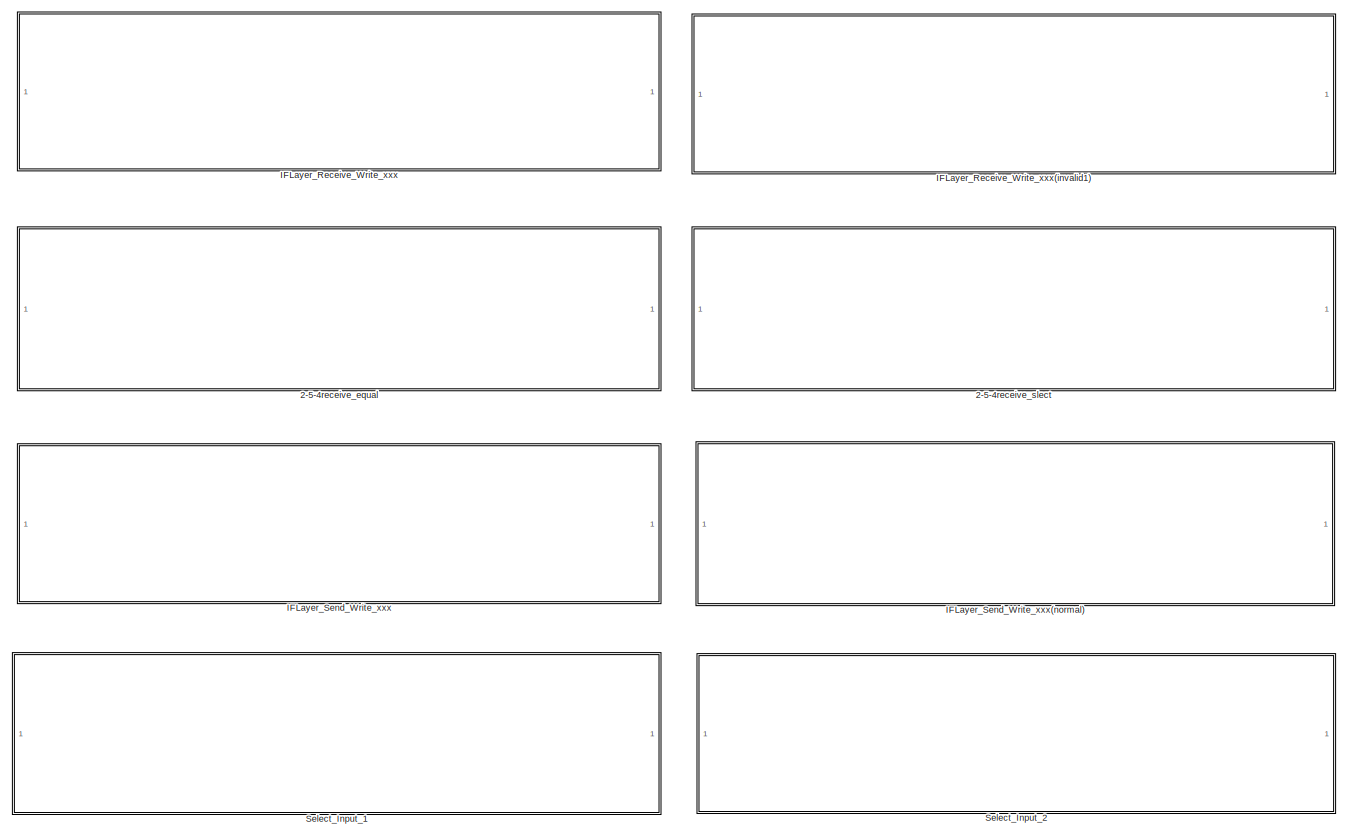
[diagram: root canvas - part 1/3, center side, full height]
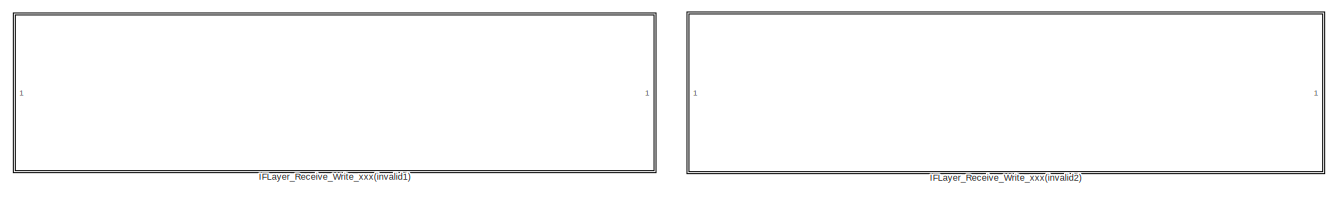
[diagram: root canvas - part 2/3, top center region]
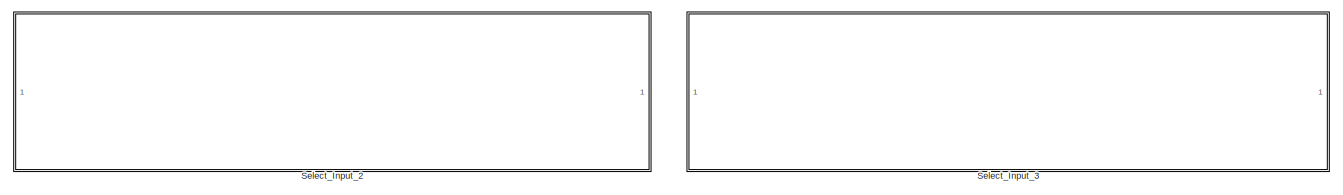
[diagram: root canvas - part 3/3, bottom right region]
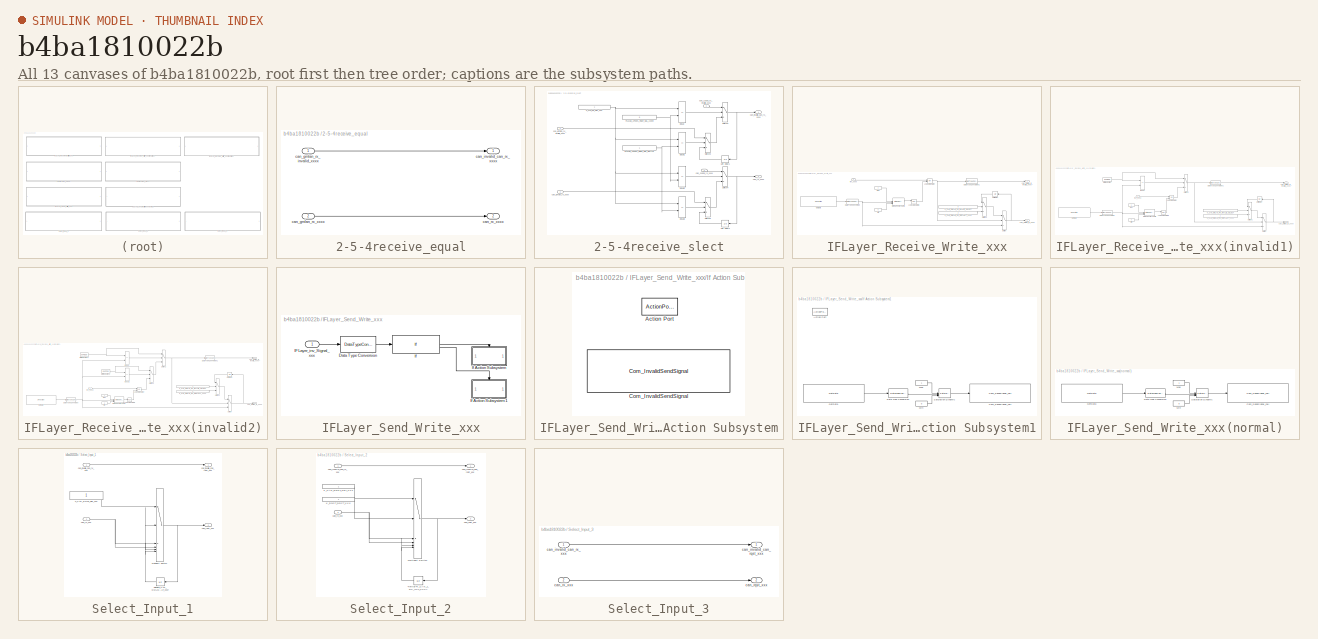
[diagram: thumbnail index - all 13 canvases of the model, root first then tree order]
MODEL slx_b4ba1810022b
KIND model
CONFIG AbsTol = auto
CONFIG EnableMultiTasking = off
CONFIG FixedStep = auto
CONFIG MaxStep = auto
CONFIG MinStep = auto
CONFIG RelTol = 1e-3
CONFIG SampleTimeConstraint = Unconstrained
CONFIG SolverName = VariableStepAuto
CONFIG StartTime = 0.0
CONFIG StopTime = 10.0
BLOCK [SubSystem] 2-5-4receive_equal
  RTWSystemCode = Nonreusable function
  TreatAsAtomicUnit = on
BLOCK [Inport] 2-5-4receive_equal/can_gmlan_rx_invalid_xxxx
BLOCK [Inport] 2-5-4receive_equal/can_gmlan_rx_xxxx
  Port = 2
BLOCK [Outport] 2-5-4receive_equal/can_invalid_can_rx_xxxx
BLOCK [Outport] 2-5-4receive_equal/can_rx_xxxx
  Port = 2
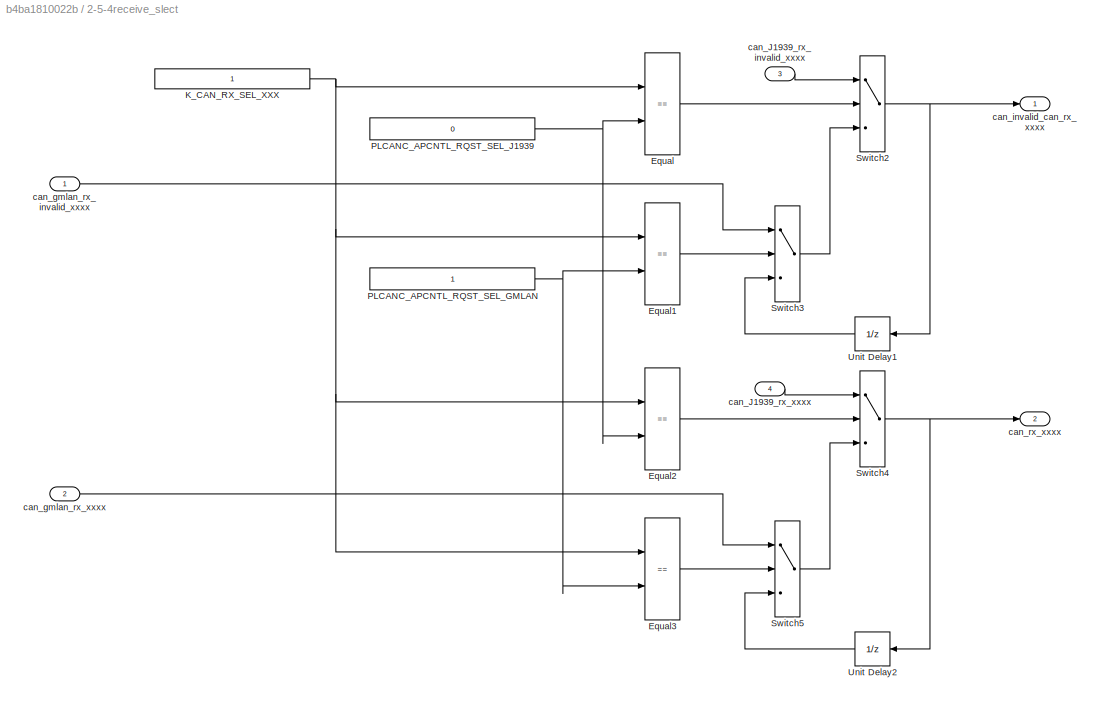
BLOCK [SubSystem] 2-5-4receive_slect
  RTWSystemCode = Nonreusable function
  TreatAsAtomicUnit = on
BLOCK [RelationalOperator] 2-5-4receive_slect/Equal
  InputSameDT = off
  Operator = ==
  OutDataTypeStr = boolean
  RndMeth = Simplest
BLOCK [RelationalOperator] 2-5-4receive_slect/Equal1
  InputSameDT = off
  Operator = ==
  OutDataTypeStr = boolean
  RndMeth = Simplest
BLOCK [RelationalOperator] 2-5-4receive_slect/Equal2
  InputSameDT = off
  Operator = ==
  OutDataTypeStr = boolean
  RndMeth = Simplest
BLOCK [RelationalOperator] 2-5-4receive_slect/Equal3
  InputSameDT = off
  Operator = ==
  OutDataTypeStr = boolean
  RndMeth = Simplest
BLOCK [Constant] 2-5-4receive_slect/K_CAN_RX_SEL_XXX
BLOCK [Constant] 2-5-4receive_slect/PLCANC_APCNTL_RQST_SEL_GMLAN
BLOCK [Constant] 2-5-4receive_slect/PLCANC_APCNTL_RQST_SEL_J1939
  Value = 0
BLOCK [Switch] 2-5-4receive_slect/Switch2
  Criteria = u2 > Threshold
  InputSameDT = off
  SaturateOnIntegerOverflow = off
BLOCK [Switch] 2-5-4receive_slect/Switch3
  Criteria = u2 > Threshold
  InputSameDT = off
  SaturateOnIntegerOverflow = off
BLOCK [Switch] 2-5-4receive_slect/Switch4
  Criteria = u2 > Threshold
  InputSameDT = off
  SaturateOnIntegerOverflow = off
BLOCK [Switch] 2-5-4receive_slect/Switch5
  Criteria = u2 > Threshold
  InputSameDT = off
  SaturateOnIntegerOverflow = off
BLOCK [UnitDelay] 2-5-4receive_slect/Unit Delay1
  HasFrameUpgradeWarning = on
  SampleTime = -1
BLOCK [UnitDelay] 2-5-4receive_slect/Unit Delay2
  HasFrameUpgradeWarning = on
  SampleTime = -1
BLOCK [Inport] 2-5-4receive_slect/can_J1939_rx_invalid_xxxx
  Port = 3
BLOCK [Inport] 2-5-4receive_slect/can_J1939_rx_xxxx
  Port = 4
BLOCK [Inport] 2-5-4receive_slect/can_gmlan_rx_invalid_xxxx
BLOCK [Inport] 2-5-4receive_slect/can_gmlan_rx_xxxx
  Port = 2
BLOCK [Outport] 2-5-4receive_slect/can_invalid_can_rx_xxxx
BLOCK [Outport] 2-5-4receive_slect/can_rx_xxxx
  Port = 2
BLOCK [SubSystem] IFLayer_Receive_Write_xxx
  RTWSystemCode = Nonreusable function
  TreatAsAtomicUnit = on
BLOCK [SubSystem] IFLayer_Receive_Write_xxx(invalid1)
  RTWSystemCode = Nonreusable function
  TreatAsAtomicUnit = on
BLOCK [DataTypeConversion] IFLayer_Receive_Write_xxx(invalid1)/Data Type Conversion
  ConvertRealWorld = Stored Integer (SI)
  RndMeth = Floor
  SaturateOnIntegerOverflow = off
BLOCK [DataTypeConversion] IFLayer_Receive_Write_xxx(invalid1)/Data Type Conversion1
  ConvertRealWorld = Stored Integer (SI)
  RndMeth = Floor
  SaturateOnIntegerOverflow = off
BLOCK [RelationalOperator] IFLayer_Receive_Write_xxx(invalid1)/Equal
  InputSameDT = off
  Operator = ==
  OutDataTypeStr = boolean
  RndMeth = Simplest
BLOCK [Constant] IFLayer_Receive_Write_xxx(invalid1)/ErrorIndication
  OutDataTypeStr = Inherit: Inherit via back propagation
  Value = 0xFE00
BLOCK [S-Function] IFLayer_Receive_Write_xxx(invalid1)/GetData
  EnableBusSupport = off
  FunctionName = GetData
  Parameters = interface,signalType
  SFcnIsStateOwnerBlock = off
  SFunctionDeploymentMode = off
BLOCK [Reference] IFLayer_Receive_Write_xxx(invalid1)/Interval Test Dynamic  REF=simulink/Logic and Bit
Operations/Interval Test
Dynamic
  SourceBlock = simulink/Logic and Bit\nOperations/Interval Test\nDynamic
  SourceType = Interval Test Dynamic
BLOCK [Constant] IFLayer_Receive_Write_xxx(invalid1)/K_CAN_GMLAN_RX_DEFAULT_xxxx
  OutDataTypeStr = Inherit: Inherit via back propagation
BLOCK [Constant] IFLayer_Receive_Write_xxx(invalid1)/K_CAN_GMLAN_RX_INVALID_SELECT
  OutDataTypeStr = Inherit: Inherit via back propagation
BLOCK [Logic] IFLayer_Receive_Write_xxx(invalid1)/Logical Operator
  AllPortsSameDT = off
  Operator = OR
  OutDataTypeStr = boolean
BLOCK [Logic] IFLayer_Receive_Write_xxx(invalid1)/Logical Operator1
  AllPortsSameDT = off
  Operator = NOT
  OutDataTypeStr = boolean
BLOCK [Constant] IFLayer_Receive_Write_xxx(invalid1)/Max
  OutDataTypeStr = Inherit: Inherit via back propagation
BLOCK [Constant] IFLayer_Receive_Write_xxx(invalid1)/Min
  OutDataTypeStr = Inherit: Inherit via back propagation
  Value = 0
BLOCK [Switch] IFLayer_Receive_Write_xxx(invalid1)/Switch
  Criteria = u2 > Threshold
  InputSameDT = off
  SaturateOnIntegerOverflow = off
BLOCK [Switch] IFLayer_Receive_Write_xxx(invalid1)/Switch1
  Criteria = u2 > Threshold
  InputSameDT = off
  SaturateOnIntegerOverflow = off
BLOCK [Switch] IFLayer_Receive_Write_xxx(invalid1)/Switch2
  Criteria = u2 > Threshold
  InputSameDT = off
  SaturateOnIntegerOverflow = off
BLOCK [UnitDelay] IFLayer_Receive_Write_xxx(invalid1)/Unit Delay
  HasFrameUpgradeWarning = on
  NameLocation = top
  SampleTime = -1
BLOCK [Outport] IFLayer_Receive_Write_xxx(invalid1)/can_gmlan_rx_invalid_xxxx
BLOCK [Outport] IFLayer_Receive_Write_xxx(invalid1)/can_gmlan_rx_xxxx
  Port = 2
BLOCK [Inport] IFLayer_Receive_Write_xxx(invalid1)/inv_xxxx
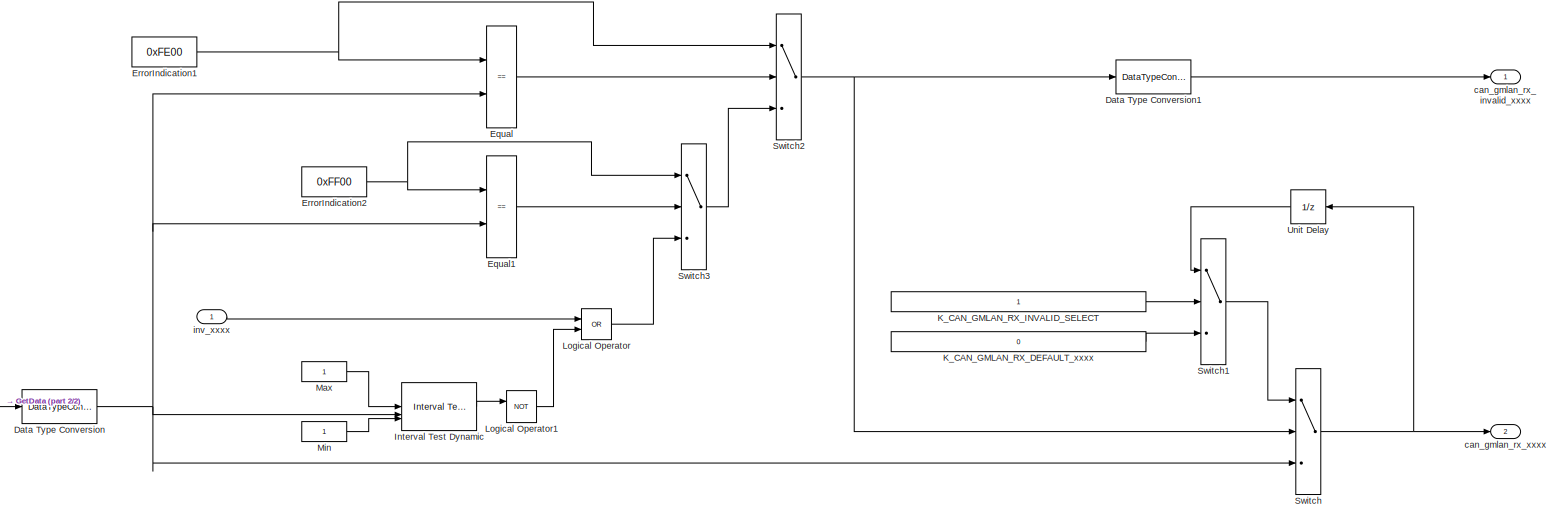
[diagram: IFLayer_Receive_Write_xxx(invalid2) - part 1/2, most of the canvas]
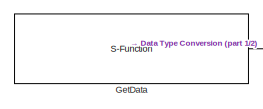
[diagram: IFLayer_Receive_Write_xxx(invalid2) - part 2/2, bottom left region]
BLOCK [SubSystem] IFLayer_Receive_Write_xxx(invalid2)
  RTWSystemCode = Nonreusable function
  TreatAsAtomicUnit = on
BLOCK [DataTypeConversion] IFLayer_Receive_Write_xxx(invalid2)/Data Type Conversion
  ConvertRealWorld = Stored Integer (SI)
  RndMeth = Floor
  SaturateOnIntegerOverflow = off
BLOCK [DataTypeConversion] IFLayer_Receive_Write_xxx(invalid2)/Data Type Conversion1
  ConvertRealWorld = Stored Integer (SI)
  RndMeth = Floor
  SaturateOnIntegerOverflow = off
BLOCK [RelationalOperator] IFLayer_Receive_Write_xxx(invalid2)/Equal
  InputSameDT = off
  Operator = ==
  OutDataTypeStr = boolean
  RndMeth = Simplest
BLOCK [RelationalOperator] IFLayer_Receive_Write_xxx(invalid2)/Equal1
  InputSameDT = off
  Operator = ==
  OutDataTypeStr = boolean
  RndMeth = Simplest
BLOCK [Constant] IFLayer_Receive_Write_xxx(invalid2)/ErrorIndication1
  OutDataTypeStr = Inherit: Inherit via back propagation
  Value = 0xFE00
BLOCK [Constant] IFLayer_Receive_Write_xxx(invalid2)/ErrorIndication2
  OutDataTypeStr = Inherit: Inherit via back propagation
  Value = 0xFF00
BLOCK [S-Function] IFLayer_Receive_Write_xxx(invalid2)/GetData
  EnableBusSupport = off
  FunctionName = GetData
  Parameters = interface,signalType
  SFcnIsStateOwnerBlock = off
  SFunctionDeploymentMode = off
BLOCK [Reference] IFLayer_Receive_Write_xxx(invalid2)/Interval Test Dynamic  REF=simulink/Logic and Bit
Operations/Interval Test
Dynamic
  SourceBlock = simulink/Logic and Bit\nOperations/Interval Test\nDynamic
  SourceType = Interval Test Dynamic
BLOCK [Constant] IFLayer_Receive_Write_xxx(invalid2)/K_CAN_GMLAN_RX_DEFAULT_xxxx
  OutDataTypeStr = Inherit: Inherit via back propagation
  Value = 0
BLOCK [Constant] IFLayer_Receive_Write_xxx(invalid2)/K_CAN_GMLAN_RX_INVALID_SELECT
  OutDataTypeStr = Inherit: Inherit via back propagation
BLOCK [Logic] IFLayer_Receive_Write_xxx(invalid2)/Logical Operator
  AllPortsSameDT = off
  Operator = OR
  OutDataTypeStr = boolean
BLOCK [Logic] IFLayer_Receive_Write_xxx(invalid2)/Logical Operator1
  AllPortsSameDT = off
  Operator = NOT
  OutDataTypeStr = boolean
BLOCK [Constant] IFLayer_Receive_Write_xxx(invalid2)/Max
  OutDataTypeStr = Inherit: Inherit via back propagation
BLOCK [Constant] IFLayer_Receive_Write_xxx(invalid2)/Min
  OutDataTypeStr = Inherit: Inherit via back propagation
BLOCK [Switch] IFLayer_Receive_Write_xxx(invalid2)/Switch
  Criteria = u2 > Threshold
  InputSameDT = off
  SaturateOnIntegerOverflow = off
BLOCK [Switch] IFLayer_Receive_Write_xxx(invalid2)/Switch1
  Criteria = u2 > Threshold
  InputSameDT = off
  SaturateOnIntegerOverflow = off
BLOCK [Switch] IFLayer_Receive_Write_xxx(invalid2)/Switch2
  Criteria = u2 > Threshold
  InputSameDT = off
  SaturateOnIntegerOverflow = off
BLOCK [Switch] IFLayer_Receive_Write_xxx(invalid2)/Switch3
  Criteria = u2 > Threshold
  InputSameDT = off
  SaturateOnIntegerOverflow = off
BLOCK [UnitDelay] IFLayer_Receive_Write_xxx(invalid2)/Unit Delay
  HasFrameUpgradeWarning = on
  NameLocation = top
  SampleTime = -1
BLOCK [Outport] IFLayer_Receive_Write_xxx(invalid2)/can_gmlan_rx_invalid_xxxx
BLOCK [Outport] IFLayer_Receive_Write_xxx(invalid2)/can_gmlan_rx_xxxx
  Port = 2
BLOCK [Inport] IFLayer_Receive_Write_xxx(invalid2)/inv_xxxx
BLOCK [DataTypeConversion] IFLayer_Receive_Write_xxx/Data Type Conversion
  ConvertRealWorld = Stored Integer (SI)
  RndMeth = Floor
  SaturateOnIntegerOverflow = off
BLOCK [DataTypeConversion] IFLayer_Receive_Write_xxx/Data Type Conversion1
  ConvertRealWorld = Stored Integer (SI)
  RndMeth = Floor
  SaturateOnIntegerOverflow = off
BLOCK [S-Function] IFLayer_Receive_Write_xxx/GetData
  EnableBusSupport = off
  FunctionName = GetData
  Parameters = interface,signalType
  SFcnIsStateOwnerBlock = off
  SFunctionDeploymentMode = off
BLOCK [Reference] IFLayer_Receive_Write_xxx/Interval Test Dynamic  REF=simulink/Logic and Bit
Operations/Interval Test
Dynamic
  SourceBlock = simulink/Logic and Bit\nOperations/Interval Test\nDynamic
  SourceType = Interval Test Dynamic
BLOCK [Constant] IFLayer_Receive_Write_xxx/K_CAN_GMLAN_RX_DEFAULT_xxxx
  OutDataTypeStr = Inherit: Inherit via back propagation
BLOCK [Constant] IFLayer_Receive_Write_xxx/K_CAN_GMLAN_RX_INVALID_SELECT
  OutDataTypeStr = Inherit: Inherit via back propagation
  Value = 0
BLOCK [Logic] IFLayer_Receive_Write_xxx/Logical Operator
  AllPortsSameDT = off
  Operator = OR
  OutDataTypeStr = boolean
BLOCK [Logic] IFLayer_Receive_Write_xxx/Logical Operator1
  AllPortsSameDT = off
  Operator = NOT
  OutDataTypeStr = boolean
BLOCK [Constant] IFLayer_Receive_Write_xxx/Max
  OutDataTypeStr = Inherit: Inherit via back propagation
BLOCK [Constant] IFLayer_Receive_Write_xxx/Min
  OutDataTypeStr = Inherit: Inherit via back propagation
  Value = 0
BLOCK [Switch] IFLayer_Receive_Write_xxx/Switch
  Criteria = u2 > Threshold
  InputSameDT = off
  SaturateOnIntegerOverflow = off
BLOCK [Switch] IFLayer_Receive_Write_xxx/Switch1
  Criteria = u2 > Threshold
  InputSameDT = off
  SaturateOnIntegerOverflow = off
BLOCK [UnitDelay] IFLayer_Receive_Write_xxx/Unit Delay
  HasFrameUpgradeWarning = on
  NameLocation = top
  SampleTime = -1
BLOCK [Outport] IFLayer_Receive_Write_xxx/can_gmlan_rx_invalid_xxxx
BLOCK [Outport] IFLayer_Receive_Write_xxx/can_gmlan_rx_xxxx
  Port = 2
BLOCK [Inport] IFLayer_Receive_Write_xxx/inv_xxxx
BLOCK [SubSystem] IFLayer_Send_Write_xxx
  RTWSystemCode = Nonreusable function
  TreatAsAtomicUnit = on
BLOCK [SubSystem] IFLayer_Send_Write_xxx(normal)
  RTWSystemCode = Nonreusable function
  TreatAsAtomicUnit = on
BLOCK [Reference] IFLayer_Send_Write_xxx(normal)/Com_SendSignal_call  REF=user_lib/Com_SendSignal_call
  SourceBlock = user_lib/Com_SendSignal_call
  SourceProductName = User Defined for IFLayer
BLOCK [DataTypeConversion] IFLayer_Send_Write_xxx(normal)/Data Type Conversion
  ConvertRealWorld = Stored Integer (SI)
  RndMeth = Floor
  SaturateOnIntegerOverflow = off
BLOCK [Reference] IFLayer_Send_Write_xxx(normal)/GetData  REF=user_lib/GetData
  SourceBlock = user_lib/GetData
  SourceProductName = User Defined for IFLayer
BLOCK [Constant] IFLayer_Send_Write_xxx(normal)/Max
  OutDataTypeStr = Inherit: Inherit via back propagation
BLOCK [Constant] IFLayer_Send_Write_xxx(normal)/Min
  OutDataTypeStr = Inherit: Inherit via back propagation
  Value = 0
BLOCK [Reference] IFLayer_Send_Write_xxx(normal)/Saturation Dynamic  REF=simulink/Discontinuities/Saturation
Dynamic
  SourceBlock = simulink/Discontinuities/Saturation\nDynamic
  SourceType = Saturation Dynamic
BLOCK [DataTypeConversion] IFLayer_Send_Write_xxx/Data Type Conversion
  OutDataTypeStr = uint8
  RndMeth = Floor
  SaturateOnIntegerOverflow = off
BLOCK [Inport] IFLayer_Send_Write_xxx/IFLayer_inv_Signal_xxx
BLOCK [If] IFLayer_Send_Write_xxx/If
  IfExpression = u1 == 1
BLOCK [SubSystem] IFLayer_Send_Write_xxx/If Action Subsystem
  TreatAsAtomicUnit = on
BLOCK [ActionPort] IFLayer_Send_Write_xxx/If Action Subsystem/Action Port
BLOCK [Reference] IFLayer_Send_Write_xxx/If Action Subsystem/Com_InvalidSendSignal  REF=user_lib/Com_InvalidSendSignal
  SourceBlock = user_lib/Com_InvalidSendSignal
  SourceProductName = User Defined for IFLayer
BLOCK [SubSystem] IFLayer_Send_Write_xxx/If Action Subsystem1
  TreatAsAtomicUnit = on
BLOCK [ActionPort] IFLayer_Send_Write_xxx/If Action Subsystem1/Action Port
BLOCK [Reference] IFLayer_Send_Write_xxx/If Action Subsystem1/Com_SendSignal_call  REF=user_lib/Com_SendSignal_call
  SourceBlock = user_lib/Com_SendSignal_call
  SourceProductName = User Defined for IFLayer
BLOCK [DataTypeConversion] IFLayer_Send_Write_xxx/If Action Subsystem1/Data Type Conversion
  ConvertRealWorld = Stored Integer (SI)
  RndMeth = Floor
  SaturateOnIntegerOverflow = off
BLOCK [Reference] IFLayer_Send_Write_xxx/If Action Subsystem1/GetData  REF=user_lib/GetData
  SourceBlock = user_lib/GetData
  SourceProductName = User Defined for IFLayer
BLOCK [Constant] IFLayer_Send_Write_xxx/If Action Subsystem1/Max
  OutDataTypeStr = Inherit: Inherit via back propagation
BLOCK [Constant] IFLayer_Send_Write_xxx/If Action Subsystem1/Min
  OutDataTypeStr = Inherit: Inherit via back propagation
  Value = 0
BLOCK [Reference] IFLayer_Send_Write_xxx/If Action Subsystem1/Saturation Dynamic  REF=simulink/Discontinuities/Saturation
Dynamic
  SourceBlock = simulink/Discontinuities/Saturation\nDynamic
  SourceType = Saturation Dynamic
BLOCK [SubSystem] Select_Input_1
  RTWSystemCode = Nonreusable function
  TreatAsAtomicUnit = on
BLOCK [UnitDelay] Select_Input_1/<initial=K_CAN_GMLAN_RX_DEFAULT_XXX>
  HasFrameUpgradeWarning = on
  SampleTime = -1
BLOCK [Constant] Select_Input_1/K_CAN_RQST_SEL_XXX
BLOCK [MultiPortSwitch] Select_Input_1/Multiport Switch
  DataPortOrder = Zero-based contiguous
  InputSameDT = off
  Inputs = 5
  SaturateOnIntegerOverflow = off
  zeroidx = on
BLOCK [Outport] Select_Input_1/can_invalid_can_rqst_xxx
BLOCK [Inport] Select_Input_1/can_invalid_can_rx_xxx
BLOCK [Outport] Select_Input_1/can_rqst_xxx
  Port = 2
BLOCK [Inport] Select_Input_1/can_rx_xxx
  Port = 2
BLOCK [SubSystem] Select_Input_2
  RTWSystemCode = Nonreusable function
  TreatAsAtomicUnit = on
BLOCK [UnitDelay] Select_Input_2/<initial=K_CAN_J_RX_INIT_XXX>
  HasFrameUpgradeWarning = on
  SampleTime = -1
BLOCK [Constant] Select_Input_2/K_CAN_RQST_SEL_XXX
BLOCK [Constant] Select_Input_2/K_RQST_DRCT_XXX
BLOCK [MultiPortSwitch] Select_Input_2/Multiport Switch
  DataPortOrder = Zero-based contiguous
  InputSameDT = off
  Inputs = 5
  SaturateOnIntegerOverflow = off
  zeroidx = on
BLOCK [Outport] Select_Input_2/can_invalid_can_rqst_xxx
BLOCK [Inport] Select_Input_2/can_invalid_can_rx_xxx
BLOCK [Outport] Select_Input_2/can_rqst_xxx
  Port = 2
BLOCK [Inport] Select_Input_2/can_rx_xxx
  Port = 2
BLOCK [SubSystem] Select_Input_3
  RTWSystemCode = Nonreusable function
  TreatAsAtomicUnit = on
BLOCK [Outport] Select_Input_3/can_invalid_can_rqst_xxx
BLOCK [Inport] Select_Input_3/can_invalid_can_rx_xxx
BLOCK [Outport] Select_Input_3/can_rqst_xxx
  Port = 2
BLOCK [Inport] Select_Input_3/can_rx_xxx
  Port = 2
LINE 2-5-4receive_equal/can_gmlan_rx_invalid_xxxx:1 -> 2-5-4receive_equal/can_invalid_can_rx_xxxx:1
LINE 2-5-4receive_equal/can_gmlan_rx_xxxx:1 -> 2-5-4receive_equal/can_rx_xxxx:1
LINE 2-5-4receive_slect/Equal1:1 -> 2-5-4receive_slect/Switch3:2
LINE 2-5-4receive_slect/Equal2:1 -> 2-5-4receive_slect/Switch4:2
LINE 2-5-4receive_slect/Equal3:1 -> 2-5-4receive_slect/Switch5:2
LINE 2-5-4receive_slect/Equal:1 -> 2-5-4receive_slect/Switch2:2
NET 2-5-4receive_slect/K_CAN_RX_SEL_XXX:1 -> 2-5-4receive_slect/Equal1:1, 2-5-4receive_slect/Equal2:1, 2-5-4receive_slect/Equal3:1, 2-5-4receive_slect/Equal:1
NET 2-5-4receive_slect/PLCANC_APCNTL_RQST_SEL_GMLAN:1 -> 2-5-4receive_slect/Equal1:2, 2-5-4receive_slect/Equal3:2
NET 2-5-4receive_slect/PLCANC_APCNTL_RQST_SEL_J1939:1 -> 2-5-4receive_slect/Equal2:2, 2-5-4receive_slect/Equal:2
NET 2-5-4receive_slect/Switch2:1 -> 2-5-4receive_slect/Unit Delay1:1, 2-5-4receive_slect/can_invalid_can_rx_xxxx:1
LINE 2-5-4receive_slect/Switch3:1 -> 2-5-4receive_slect/Switch2:3
NET 2-5-4receive_slect/Switch4:1 -> 2-5-4receive_slect/Unit Delay2:1, 2-5-4receive_slect/can_rx_xxxx:1
LINE 2-5-4receive_slect/Switch5:1 -> 2-5-4receive_slect/Switch4:3
LINE 2-5-4receive_slect/Unit Delay1:1 -> 2-5-4receive_slect/Switch3:3
LINE 2-5-4receive_slect/Unit Delay2:1 -> 2-5-4receive_slect/Switch5:3
LINE 2-5-4receive_slect/can_J1939_rx_invalid_xxxx:1 -> 2-5-4receive_slect/Switch2:1
LINE 2-5-4receive_slect/can_J1939_rx_xxxx:1 -> 2-5-4receive_slect/Switch4:1
LINE 2-5-4receive_slect/can_gmlan_rx_invalid_xxxx:1 -> 2-5-4receive_slect/Switch3:1
LINE 2-5-4receive_slect/can_gmlan_rx_xxxx:1 -> 2-5-4receive_slect/Switch5:1
LINE IFLayer_Receive_Write_xxx(invalid1)/Data Type Conversion1:1 -> IFLayer_Receive_Write_xxx(invalid1)/can_gmlan_rx_invalid_xxxx:1
NET IFLayer_Receive_Write_xxx(invalid1)/Data Type Conversion:1 -> IFLayer_Receive_Write_xxx(invalid1)/Equal:2, IFLayer_Receive_Write_xxx(invalid1)/Interval Test Dynamic:2, IFLayer_Receive_Write_xxx(invalid1)/Switch:3
LINE IFLayer_Receive_Write_xxx(invalid1)/Equal:1 -> IFLayer_Receive_Write_xxx(invalid1)/Switch2:2
NET IFLayer_Receive_Write_xxx(invalid1)/ErrorIndication:1 -> IFLayer_Receive_Write_xxx(invalid1)/Equal:1, IFLayer_Receive_Write_xxx(invalid1)/Switch2:1
LINE IFLayer_Receive_Write_xxx(invalid1)/GetData:1 -> IFLayer_Receive_Write_xxx(invalid1)/Data Type Conversion:1
LINE IFLayer_Receive_Write_xxx(invalid1)/Interval Test Dynamic:1 -> IFLayer_Receive_Write_xxx(invalid1)/Logical Operator1:1
LINE IFLayer_Receive_Write_xxx(invalid1)/K_CAN_GMLAN_RX_DEFAULT_xxxx:1 -> IFLayer_Receive_Write_xxx(invalid1)/Switch1:3
LINE IFLayer_Receive_Write_xxx(invalid1)/K_CAN_GMLAN_RX_INVALID_SELECT:1 -> IFLayer_Receive_Write_xxx(invalid1)/Switch1:2
LINE IFLayer_Receive_Write_xxx(invalid1)/Logical Operator1:1 -> IFLayer_Receive_Write_xxx(invalid1)/Logical Operator:2
LINE IFLayer_Receive_Write_xxx(invalid1)/Logical Operator:1 -> IFLayer_Receive_Write_xxx(invalid1)/Switch2:3
LINE IFLayer_Receive_Write_xxx(invalid1)/Max:1 -> IFLayer_Receive_Write_xxx(invalid1)/Interval Test Dynamic:1
LINE IFLayer_Receive_Write_xxx(invalid1)/Min:1 -> IFLayer_Receive_Write_xxx(invalid1)/Interval Test Dynamic:3
LINE IFLayer_Receive_Write_xxx(invalid1)/Switch1:1 -> IFLayer_Receive_Write_xxx(invalid1)/Switch:1
NET IFLayer_Receive_Write_xxx(invalid1)/Switch2:1 -> IFLayer_Receive_Write_xxx(invalid1)/Data Type Conversion1:1, IFLayer_Receive_Write_xxx(invalid1)/Switch:2
NET IFLayer_Receive_Write_xxx(invalid1)/Switch:1 -> IFLayer_Receive_Write_xxx(invalid1)/Unit Delay:1, IFLayer_Receive_Write_xxx(invalid1)/can_gmlan_rx_xxxx:1
LINE IFLayer_Receive_Write_xxx(invalid1)/Unit Delay:1 -> IFLayer_Receive_Write_xxx(invalid1)/Switch1:1
LINE IFLayer_Receive_Write_xxx(invalid1)/inv_xxxx:1 -> IFLayer_Receive_Write_xxx(invalid1)/Logical Operator:1
LINE IFLayer_Receive_Write_xxx(invalid2)/Data Type Conversion1:1 -> IFLayer_Receive_Write_xxx(invalid2)/can_gmlan_rx_invalid_xxxx:1
NET IFLayer_Receive_Write_xxx(invalid2)/Data Type Conversion:1 -> IFLayer_Receive_Write_xxx(invalid2)/Equal1:2, IFLayer_Receive_Write_xxx(invalid2)/Equal:2, IFLayer_Receive_Write_xxx(invalid2)/Interval Test Dynamic:2, IFLayer_Receive_Write_xxx(invalid2)/Switch:3
LINE IFLayer_Receive_Write_xxx(invalid2)/Equal1:1 -> IFLayer_Receive_Write_xxx(invalid2)/Switch3:2
LINE IFLayer_Receive_Write_xxx(invalid2)/Equal:1 -> IFLayer_Receive_Write_xxx(invalid2)/Switch2:2
NET IFLayer_Receive_Write_xxx(invalid2)/ErrorIndication1:1 -> IFLayer_Receive_Write_xxx(invalid2)/Equal:1, IFLayer_Receive_Write_xxx(invalid2)/Switch2:1
NET IFLayer_Receive_Write_xxx(invalid2)/ErrorIndication2:1 -> IFLayer_Receive_Write_xxx(invalid2)/Equal1:1, IFLayer_Receive_Write_xxx(invalid2)/Switch3:1
LINE IFLayer_Receive_Write_xxx(invalid2)/GetData:1 -> IFLayer_Receive_Write_xxx(invalid2)/Data Type Conversion:1
LINE IFLayer_Receive_Write_xxx(invalid2)/Interval Test Dynamic:1 -> IFLayer_Receive_Write_xxx(invalid2)/Logical Operator1:1
LINE IFLayer_Receive_Write_xxx(invalid2)/K_CAN_GMLAN_RX_DEFAULT_xxxx:1 -> IFLayer_Receive_Write_xxx(invalid2)/Switch1:3
LINE IFLayer_Receive_Write_xxx(invalid2)/K_CAN_GMLAN_RX_INVALID_SELECT:1 -> IFLayer_Receive_Write_xxx(invalid2)/Switch1:2
LINE IFLayer_Receive_Write_xxx(invalid2)/Logical Operator1:1 -> IFLayer_Receive_Write_xxx(invalid2)/Logical Operator:2
LINE IFLayer_Receive_Write_xxx(invalid2)/Logical Operator:1 -> IFLayer_Receive_Write_xxx(invalid2)/Switch3:3
LINE IFLayer_Receive_Write_xxx(invalid2)/Max:1 -> IFLayer_Receive_Write_xxx(invalid2)/Interval Test Dynamic:1
LINE IFLayer_Receive_Write_xxx(invalid2)/Min:1 -> IFLayer_Receive_Write_xxx(invalid2)/Interval Test Dynamic:3
LINE IFLayer_Receive_Write_xxx(invalid2)/Switch1:1 -> IFLayer_Receive_Write_xxx(invalid2)/Switch:1
NET IFLayer_Receive_Write_xxx(invalid2)/Switch2:1 -> IFLayer_Receive_Write_xxx(invalid2)/Data Type Conversion1:1, IFLayer_Receive_Write_xxx(invalid2)/Switch:2
LINE IFLayer_Receive_Write_xxx(invalid2)/Switch3:1 -> IFLayer_Receive_Write_xxx(invalid2)/Switch2:3
NET IFLayer_Receive_Write_xxx(invalid2)/Switch:1 -> IFLayer_Receive_Write_xxx(invalid2)/Unit Delay:1, IFLayer_Receive_Write_xxx(invalid2)/can_gmlan_rx_xxxx:1
LINE IFLayer_Receive_Write_xxx(invalid2)/Unit Delay:1 -> IFLayer_Receive_Write_xxx(invalid2)/Switch1:1
LINE IFLayer_Receive_Write_xxx(invalid2)/inv_xxxx:1 -> IFLayer_Receive_Write_xxx(invalid2)/Logical Operator:1
LINE IFLayer_Receive_Write_xxx/Data Type Conversion1:1 -> IFLayer_Receive_Write_xxx/can_gmlan_rx_invalid_xxxx:1
NET IFLayer_Receive_Write_xxx/Data Type Conversion:1 -> IFLayer_Receive_Write_xxx/Interval Test Dynamic:2, IFLayer_Receive_Write_xxx/Switch:3
LINE IFLayer_Receive_Write_xxx/GetData:1 -> IFLayer_Receive_Write_xxx/Data Type Conversion:1
LINE IFLayer_Receive_Write_xxx/Interval Test Dynamic:1 -> IFLayer_Receive_Write_xxx/Logical Operator1:1
LINE IFLayer_Receive_Write_xxx/K_CAN_GMLAN_RX_DEFAULT_xxxx:1 -> IFLayer_Receive_Write_xxx/Switch1:3
LINE IFLayer_Receive_Write_xxx/K_CAN_GMLAN_RX_INVALID_SELECT:1 -> IFLayer_Receive_Write_xxx/Switch1:2
LINE IFLayer_Receive_Write_xxx/Logical Operator1:1 -> IFLayer_Receive_Write_xxx/Logical Operator:2
NET IFLayer_Receive_Write_xxx/Logical Operator:1 -> IFLayer_Receive_Write_xxx/Data Type Conversion1:1, IFLayer_Receive_Write_xxx/Switch:2
LINE IFLayer_Receive_Write_xxx/Max:1 -> IFLayer_Receive_Write_xxx/Interval Test Dynamic:1
LINE IFLayer_Receive_Write_xxx/Min:1 -> IFLayer_Receive_Write_xxx/Interval Test Dynamic:3
LINE IFLayer_Receive_Write_xxx/Switch1:1 -> IFLayer_Receive_Write_xxx/Switch:1
NET IFLayer_Receive_Write_xxx/Switch:1 -> IFLayer_Receive_Write_xxx/Unit Delay:1, IFLayer_Receive_Write_xxx/can_gmlan_rx_xxxx:1
LINE IFLayer_Receive_Write_xxx/Unit Delay:1 -> IFLayer_Receive_Write_xxx/Switch1:1
LINE IFLayer_Receive_Write_xxx/inv_xxxx:1 -> IFLayer_Receive_Write_xxx/Logical Operator:1
LINE IFLayer_Send_Write_xxx(normal)/Data Type Conversion:1 -> IFLayer_Send_Write_xxx(normal)/Saturation Dynamic:2
LINE IFLayer_Send_Write_xxx(normal)/GetData:1 -> IFLayer_Send_Write_xxx(normal)/Data Type Conversion:1
LINE IFLayer_Send_Write_xxx(normal)/Max:1 -> IFLayer_Send_Write_xxx(normal)/Saturation Dynamic:1
LINE IFLayer_Send_Write_xxx(normal)/Min:1 -> IFLayer_Send_Write_xxx(normal)/Saturation Dynamic:3
LINE IFLayer_Send_Write_xxx(normal)/Saturation Dynamic:1 -> IFLayer_Send_Write_xxx(normal)/Com_SendSignal_call:1
LINE IFLayer_Send_Write_xxx/Data Type Conversion:1 -> IFLayer_Send_Write_xxx/If:1
LINE IFLayer_Send_Write_xxx/IFLayer_inv_Signal_xxx:1 -> IFLayer_Send_Write_xxx/Data Type Conversion:1
LINE IFLayer_Send_Write_xxx/If Action Subsystem1/Data Type Conversion:1 -> IFLayer_Send_Write_xxx/If Action Subsystem1/Saturation Dynamic:2
LINE IFLayer_Send_Write_xxx/If Action Subsystem1/GetData:1 -> IFLayer_Send_Write_xxx/If Action Subsystem1/Data Type Conversion:1
LINE IFLayer_Send_Write_xxx/If Action Subsystem1/Max:1 -> IFLayer_Send_Write_xxx/If Action Subsystem1/Saturation Dynamic:1
LINE IFLayer_Send_Write_xxx/If Action Subsystem1/Min:1 -> IFLayer_Send_Write_xxx/If Action Subsystem1/Saturation Dynamic:3
LINE IFLayer_Send_Write_xxx/If Action Subsystem1/Saturation Dynamic:1 -> IFLayer_Send_Write_xxx/If Action Subsystem1/Com_SendSignal_call:1
LINE IFLayer_Send_Write_xxx/If:1 -> IFLayer_Send_Write_xxx/If Action Subsystem:ifaction
LINE IFLayer_Send_Write_xxx/If:2 -> IFLayer_Send_Write_xxx/If Action Subsystem1:ifaction
NET Select_Input_1/<initial=K_CAN_GMLAN_RX_DEFAULT_XXX>:1 -> Select_Input_1/Multiport Switch:2, Select_Input_1/Multiport Switch:5, Select_Input_1/Multiport Switch:6
LINE Select_Input_1/K_CAN_RQST_SEL_XXX:1 -> Select_Input_1/Multiport Switch:1
NET Select_Input_1/Multiport Switch:1 -> Select_Input_1/<initial=K_CAN_GMLAN_RX_DEFAULT_XXX>:1, Select_Input_1/can_rqst_xxx:1
LINE Select_Input_1/can_invalid_can_rx_xxx:1 -> Select_Input_1/can_invalid_can_rqst_xxx:1
NET Select_Input_1/can_rx_xxx:1 -> Select_Input_1/Multiport Switch:3, Select_Input_1/Multiport Switch:4
NET Select_Input_2/<initial=K_CAN_J_RX_INIT_XXX>:1 -> Select_Input_2/Multiport Switch:5, Select_Input_2/Multiport Switch:6
LINE Select_Input_2/K_CAN_RQST_SEL_XXX:1 -> Select_Input_2/Multiport Switch:1
LINE Select_Input_2/K_RQST_DRCT_XXX:1 -> Select_Input_2/Multiport Switch:2
NET Select_Input_2/Multiport Switch:1 -> Select_Input_2/<initial=K_CAN_J_RX_INIT_XXX>:1, Select_Input_2/can_rqst_xxx:1
LINE Select_Input_2/can_invalid_can_rx_xxx:1 -> Select_Input_2/can_invalid_can_rqst_xxx:1
NET Select_Input_2/can_rx_xxx:1 -> Select_Input_2/Multiport Switch:3, Select_Input_2/Multiport Switch:4
LINE Select_Input_3/can_invalid_can_rx_xxx:1 -> Select_Input_3/can_invalid_can_rqst_xxx:1
LINE Select_Input_3/can_rx_xxx:1 -> Select_Input_3/can_rqst_xxx:1
note: NET lines group one-source signal fan-out (src -> all destinations, sorted); 1:1 wires keep LINE
